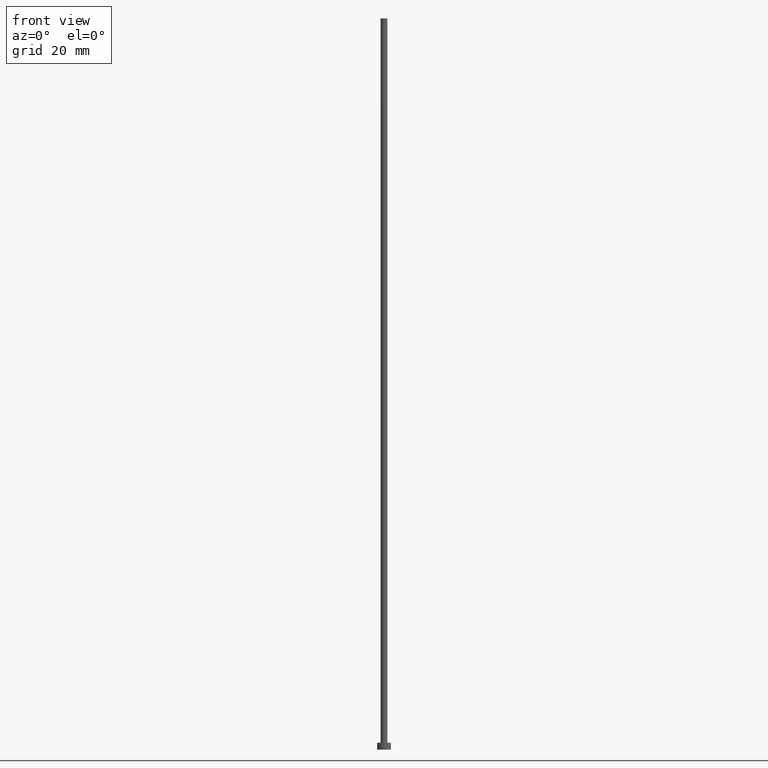
[diagram: clean part render]
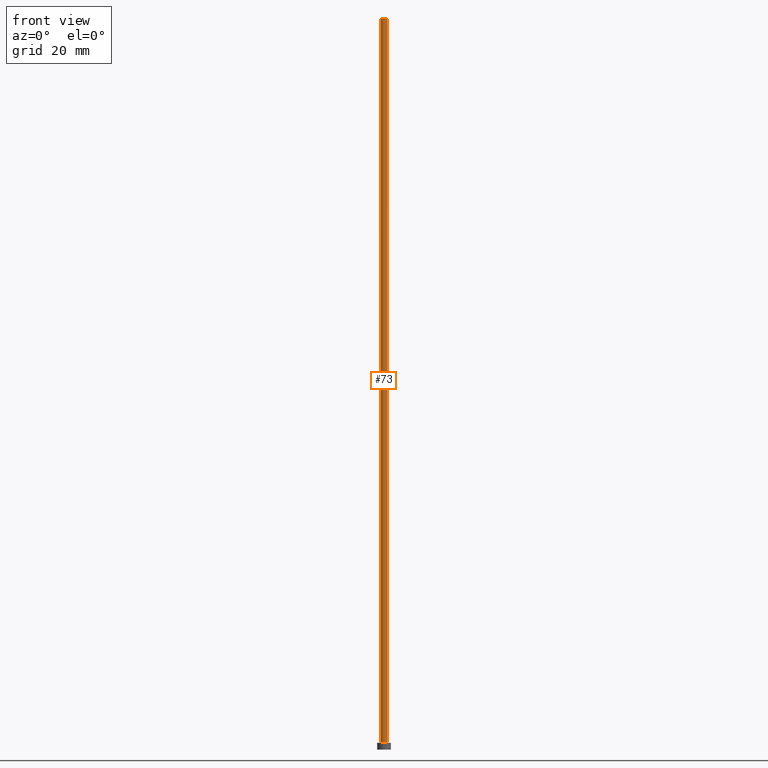
[diagram: same view with one face highlighted and labeled with its STEP entity id]
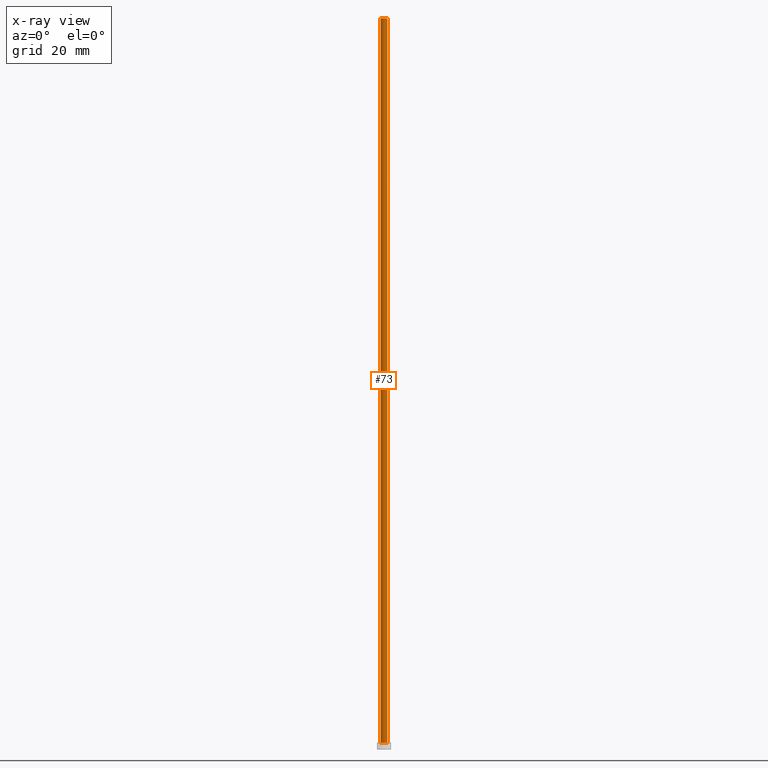
[diagram: x-ray of the same camera — body ghosted, the highlighted face saturated]
A machine part, front view. The second image highlights one B-rep face of the part: STEP entity #73.
The next image is the same camera in x-ray: the body ghosted, the highlighted face saturated — about 0% of this face is hidden behind the body in this view.
In plain terms, the highlighted cylindrical surface (edge-blend (fillet) strip) has radius 0.75 mm, axis along (-0, -0, -1).
Its self-contained STEP definition (entity closure, byte-faithful):
#2 = AXIS2_PLACEMENT_3D ( 'NONE', #221, #118, #52 ) ;
#3 = ORIENTED_EDGE ( 'NONE', *, *, #123, .F. ) ;
#18 = CIRCLE ( 'NONE', #2, 0.7500000000000001110 ) ;
#21 = CARTESIAN_POINT ( 'NONE',  ( -0.7500000000000001110, 0.000000000000000000, 160.0000000000000000 ) ) ;
#25 = ORIENTED_EDGE ( 'NONE', *, *, #235, .T. ) ;
#28 = VECTOR ( 'NONE', #66, 1000.000000000000000 ) ;
#43 = DIRECTION ( 'NONE',  ( -0.000000000000000000, -0.000000000000000000, -1.000000000000000000 ) ) ;
#45 = AXIS2_PLACEMENT_3D ( 'NONE', #68, #91, #51 ) ;
#46 = CYLINDRICAL_SURFACE ( 'NONE', #125, 0.7500000000000001110 ) ;
#51 = DIRECTION ( 'NONE',  ( 1.000000000000000000, 0.000000000000000000, 0.000000000000000000 ) ) ;
#52 = DIRECTION ( 'NONE',  ( 1.000000000000000000, 0.000000000000000000, 0.000000000000000000 ) ) ;
#66 = DIRECTION ( 'NONE',  ( -0.000000000000000000, -0.000000000000000000, -1.000000000000000000 ) ) ;
#68 = CARTESIAN_POINT ( 'NONE',  ( 0.000000000000000000, 0.000000000000000000, 1.500000000000000000 ) ) ;
#71 = EDGE_LOOP ( 'NONE', ( #208, #3, #25, #167 ) ) ;
#73 = ADVANCED_FACE ( 'NONE', ( #216 ), #46, .T. ) ;
#82 = VERTEX_POINT ( 'NONE', #222 ) ;
#91 = DIRECTION ( 'NONE',  ( 0.000000000000000000, 0.000000000000000000, 1.000000000000000000 ) ) ;
#113 = CARTESIAN_POINT ( 'NONE',  ( 0.000000000000000000, 0.000000000000000000, 160.0000000000000000 ) ) ;
#115 = CARTESIAN_POINT ( 'NONE',  ( 0.7500000000000001110, 9.184850993605150903E-17, 1.500000000000000000 ) ) ;
#117 = EDGE_CURVE ( 'NONE', #230, #145, #223, .T. ) ;
#118 = DIRECTION ( 'NONE',  ( 0.000000000000000000, 0.000000000000000000, 1.000000000000000000 ) ) ;
#123 = EDGE_CURVE ( 'NONE', #248, #230, #18, .T. ) ;
#125 = AXIS2_PLACEMENT_3D ( 'NONE', #113, #197, #227 ) ;
#145 = VERTEX_POINT ( 'NONE', #115 ) ;
#167 = ORIENTED_EDGE ( 'NONE', *, *, #181, .T. ) ;
#181 = EDGE_CURVE ( 'NONE', #82, #145, #228, .T. ) ;
#191 = LINE ( 'NONE', #207, #225 ) ;
#197 = DIRECTION ( 'NONE',  ( -0.000000000000000000, -0.000000000000000000, -1.000000000000000000 ) ) ;
#207 = CARTESIAN_POINT ( 'NONE',  ( -0.7500000000000001110, 0.000000000000000000, 160.0000000000000000 ) ) ;
#208 = ORIENTED_EDGE ( 'NONE', *, *, #117, .F. ) ;
#210 = CARTESIAN_POINT ( 'NONE',  ( 0.7500000000000001110, 9.184850993605150903E-17, 160.0000000000000000 ) ) ;
#216 = FACE_OUTER_BOUND ( 'NONE', #71, .T. ) ;
#221 = CARTESIAN_POINT ( 'NONE',  ( 0.000000000000000000, 0.000000000000000000, 160.0000000000000000 ) ) ;
#222 = CARTESIAN_POINT ( 'NONE',  ( -0.7500000000000001110, 0.000000000000000000, 1.500000000000000000 ) ) ;
#223 = LINE ( 'NONE', #245, #28 ) ;
#225 = VECTOR ( 'NONE', #43, 1000.000000000000000 ) ;
#227 = DIRECTION ( 'NONE',  ( -1.000000000000000000, 0.000000000000000000, 0.000000000000000000 ) ) ;
#228 = CIRCLE ( 'NONE', #45, 0.7500000000000001110 ) ;
#230 = VERTEX_POINT ( 'NONE', #210 ) ;
#235 = EDGE_CURVE ( 'NONE', #248, #82, #191, .T. ) ;
#245 = CARTESIAN_POINT ( 'NONE',  ( 0.7500000000000001110, 9.184850993605150903E-17, 160.0000000000000000 ) ) ;
#248 = VERTEX_POINT ( 'NONE', #21 ) ;